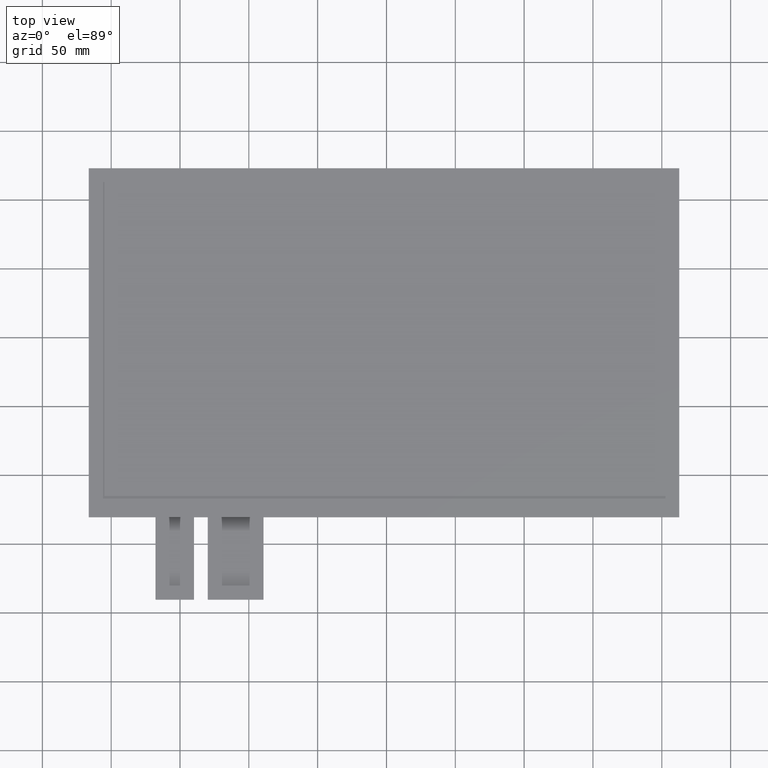
[diagram: clean part render]
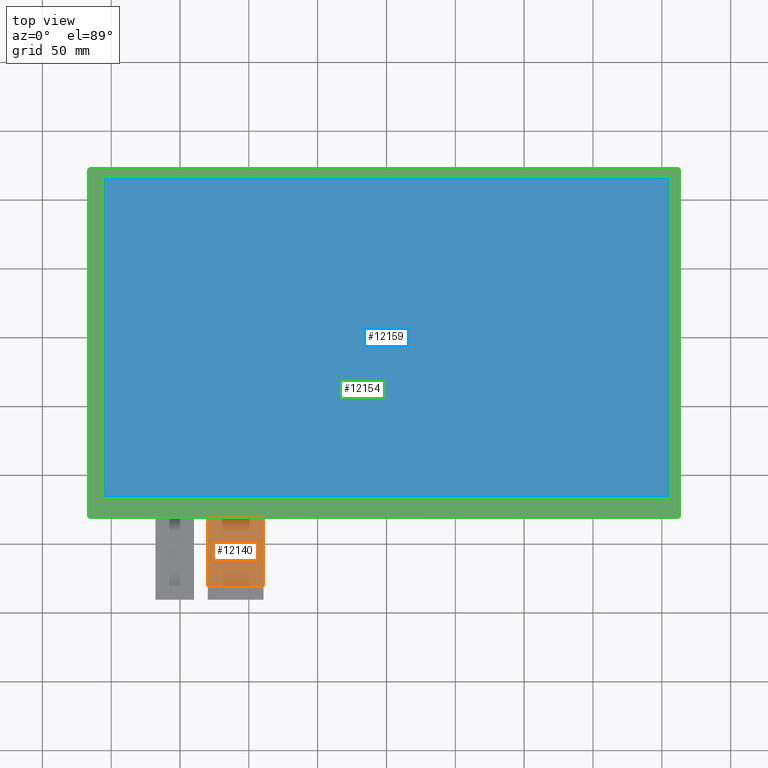
[diagram: same view with three faces highlighted in distinct colors, each labeled with its STEP entity id]
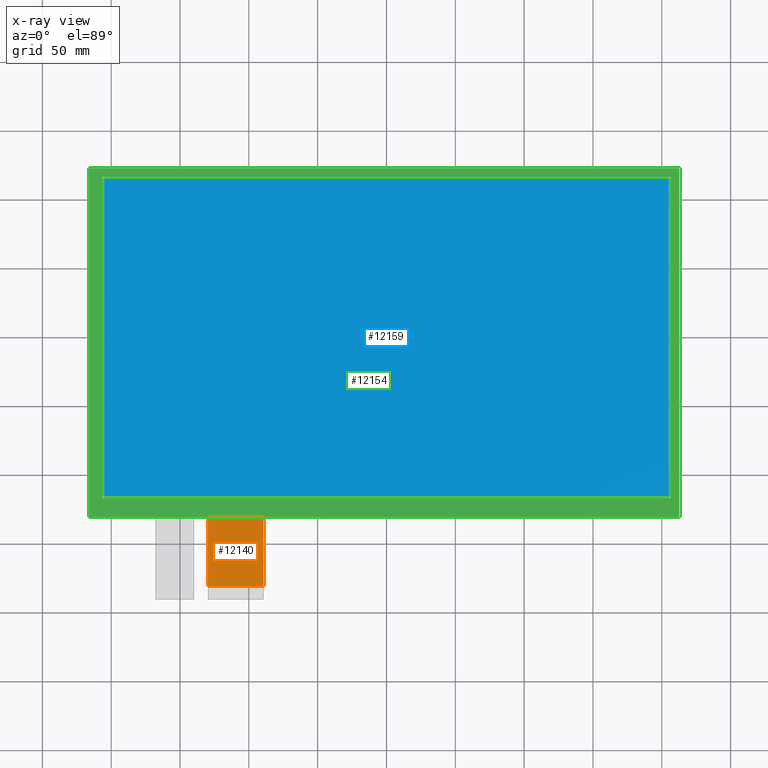
[diagram: x-ray of the same camera — body ghosted, the three highlighted faces saturated]
A machine part, top view with three faces highlighted in distinct colors.
The next image is the same camera in x-ray (body ghosted, the three faces saturated) — at least one of them is partly hidden behind the body in this view.
Their STEP definitions:

[orange] entity #12140 — the highlighted planar face has unit normal (0, 0, 1).
#682=PLANE('',#12746);
#1260=FACE_OUTER_BOUND('',#1838,.T.);
#1838=EDGE_LOOP('',(#11475,#11476,#11477,#11478));
#3514=LINE('',#18972,#5222);
#3517=LINE('',#18978,#5225);
#3527=LINE('',#18997,#5235);
#3528=LINE('',#18999,#5236);
#5222=VECTOR('',#15540,10.);
#5225=VECTOR('',#15545,10.);
#5235=VECTOR('',#15563,10.);
#5236=VECTOR('',#15566,10.);
#6396=VERTEX_POINT('',#18969);
#6397=VERTEX_POINT('',#18971);
#6399=VERTEX_POINT('',#18977);
#6404=VERTEX_POINT('',#18995);
#8090=EDGE_CURVE('',#6397,#6396,#3514,.T.);
#8093=EDGE_CURVE('',#6396,#6399,#3517,.T.);
#8103=EDGE_CURVE('',#6399,#6404,#3527,.T.);
#8104=EDGE_CURVE('',#6397,#6404,#3528,.T.);
#11475=ORIENTED_EDGE('',*,*,#8093,.T.);
#11476=ORIENTED_EDGE('',*,*,#8103,.T.);
#11477=ORIENTED_EDGE('',*,*,#8104,.F.);
#11478=ORIENTED_EDGE('',*,*,#8090,.T.);
#12140=ADVANCED_FACE('',(#1260),#682,.T.);
#12746=AXIS2_PLACEMENT_3D('',#18998,#15564,#15565);
#15540=DIRECTION('',(2.96059473233375E-16,-1.,0.));
#15545=DIRECTION('',(1.,0.,0.));
#15563=DIRECTION('',(8.88178419700127E-16,1.,0.));
#15564=DIRECTION('center_axis',(0.,0.,1.));
#15565=DIRECTION('ref_axis',(1.,0.,0.));
#15566=DIRECTION('',(1.,1.24220758000017E-16,0.));
#18969=CARTESIAN_POINT('',(-129.8,-180.5,-1.1));
#18971=CARTESIAN_POINT('',(-129.8,-130.5,-1.1));
#18972=CARTESIAN_POINT('',(-129.8,-130.5,-1.1));
#18977=CARTESIAN_POINT('',(-89.3,-180.5,-1.1));
#18978=CARTESIAN_POINT('',(-99.425,-180.5,-1.1));
#18995=CARTESIAN_POINT('',(-89.2999999999999,-130.5,-1.1));
#18997=CARTESIAN_POINT('',(-89.3,-190.5,-1.1));
#18998=CARTESIAN_POINT('Origin',(-109.55,-160.5,-1.1));
#18999=CARTESIAN_POINT('',(51.575,-130.5,-1.1));

[blue] entity #12159 — the highlighted planar face has unit normal (0, 0, 1).
#701=PLANE('',#12765);
#1279=FACE_OUTER_BOUND('',#1861,.T.);
#1861=EDGE_LOOP('',(#11571,#11572,#11573,#11574));
#3535=LINE('',#19015,#5243);
#3539=LINE('',#19023,#5247);
#3542=LINE('',#19029,#5250);
#3545=LINE('',#19034,#5253);
#5243=VECTOR('',#15583,10.);
#5247=VECTOR('',#15589,10.);
#5250=VECTOR('',#15594,10.);
#5253=VECTOR('',#15599,10.);
#6407=VERTEX_POINT('',#19013);
#6408=VERTEX_POINT('',#19014);
#6411=VERTEX_POINT('',#19022);
#6413=VERTEX_POINT('',#19028);
#8111=EDGE_CURVE('',#6407,#6408,#3535,.T.);
#8115=EDGE_CURVE('',#6411,#6407,#3539,.T.);
#8118=EDGE_CURVE('',#6413,#6411,#3542,.T.);
#8121=EDGE_CURVE('',#6408,#6413,#3545,.T.);
#11571=ORIENTED_EDGE('',*,*,#8111,.T.);
#11572=ORIENTED_EDGE('',*,*,#8121,.T.);
#11573=ORIENTED_EDGE('',*,*,#8118,.T.);
#11574=ORIENTED_EDGE('',*,*,#8115,.T.);
#12159=ADVANCED_FACE('',(#1279),#701,.T.);
#12765=AXIS2_PLACEMENT_3D('',#19086,#15645,#15646);
#15583=DIRECTION('',(1.,0.,0.));
#15589=DIRECTION('',(0.,-1.,0.));
#15594=DIRECTION('',(-1.,0.,0.));
#15599=DIRECTION('',(0.,1.,0.));
#15645=DIRECTION('center_axis',(0.,0.,1.));
#15646=DIRECTION('ref_axis',(1.,0.,0.));
#19013=CARTESIAN_POINT('',(-204.9,-115.2,0.));
#19014=CARTESIAN_POINT('',(204.9,-115.2,0.));
#19015=CARTESIAN_POINT('',(-103.35,-115.2,0.));
#19022=CARTESIAN_POINT('',(-204.9,115.2,0.));
#19023=CARTESIAN_POINT('',(-204.9,55.725,0.));
#19028=CARTESIAN_POINT('',(204.9,115.2,0.));
#19029=CARTESIAN_POINT('',(101.55,115.2,0.));
#19034=CARTESIAN_POINT('',(204.9,-59.475,0.));
#19086=CARTESIAN_POINT('Origin',(-1.80000000000001,-3.75000000000002,0.));

[green] entity #12154 — the highlighted planar face has unit normal (0, 0, 1).
#126=FACE_BOUND('',#1854,.T.);
#696=PLANE('',#12760);
#1274=FACE_OUTER_BOUND('',#1853,.T.);
#1853=EDGE_LOOP('',(#11539,#11540,#11541,#11542));
#1854=EDGE_LOOP('',(#11543,#11544,#11545,#11546));
#3547=LINE('',#19039,#5255);
#3551=LINE('',#19047,#5259);
#3554=LINE('',#19053,#5262);
#3557=LINE('',#19058,#5265);
#3559=LINE('',#19064,#5267);
#3560=LINE('',#19066,#5268);
#3561=LINE('',#19068,#5269);
#3562=LINE('',#19069,#5270);
#5255=VECTOR('',#15603,10.);
#5259=VECTOR('',#15609,10.);
#5262=VECTOR('',#15614,10.);
#5265=VECTOR('',#15619,10.);
#5267=VECTOR('',#15625,10.);
#5268=VECTOR('',#15626,10.);
#5269=VECTOR('',#15627,10.);
#5270=VECTOR('',#15628,10.);
#6415=VERTEX_POINT('',#19037);
#6416=VERTEX_POINT('',#19038);
#6419=VERTEX_POINT('',#19046);
#6421=VERTEX_POINT('',#19052);
#6423=VERTEX_POINT('',#19062);
#6424=VERTEX_POINT('',#19063);
#6425=VERTEX_POINT('',#19065);
#6426=VERTEX_POINT('',#19067);
#8123=EDGE_CURVE('',#6415,#6416,#3547,.T.);
#8127=EDGE_CURVE('',#6419,#6415,#3551,.T.);
#8130=EDGE_CURVE('',#6421,#6419,#3554,.T.);
#8133=EDGE_CURVE('',#6416,#6421,#3557,.T.);
#8135=EDGE_CURVE('',#6423,#6424,#3559,.T.);
#8136=EDGE_CURVE('',#6424,#6425,#3560,.T.);
#8137=EDGE_CURVE('',#6425,#6426,#3561,.T.);
#8138=EDGE_CURVE('',#6426,#6423,#3562,.T.);
#11539=ORIENTED_EDGE('',*,*,#8135,.T.);
#11540=ORIENTED_EDGE('',*,*,#8136,.T.);
#11541=ORIENTED_EDGE('',*,*,#8137,.T.);
#11542=ORIENTED_EDGE('',*,*,#8138,.T.);
#11543=ORIENTED_EDGE('',*,*,#8123,.T.);
#11544=ORIENTED_EDGE('',*,*,#8133,.T.);
#11545=ORIENTED_EDGE('',*,*,#8130,.T.);
#11546=ORIENTED_EDGE('',*,*,#8127,.T.);
#12154=ADVANCED_FACE('',(#1274,#126),#696,.T.);
#12760=AXIS2_PLACEMENT_3D('',#19061,#15623,#15624);
#15603=DIRECTION('',(-3.03650741777821E-16,1.,0.));
#15609=DIRECTION('',(-1.,-8.59388891824021E-17,0.));
#15614=DIRECTION('',(-1.5182537088891E-16,-1.,0.));
#15619=DIRECTION('',(1.,0.,0.));
#15623=DIRECTION('center_axis',(0.,0.,1.));
#15624=DIRECTION('ref_axis',(1.,0.,0.));
#15625=DIRECTION('',(-1.,0.,0.));
#15626=DIRECTION('',(2.80292992410296E-16,-1.,0.));
#15627=DIRECTION('',(1.,1.24220758000017E-16,0.));
#15628=DIRECTION('',(1.40146496205148E-16,1.,0.));
#19037=CARTESIAN_POINT('',(-206.7,-117.,0.));
#19038=CARTESIAN_POINT('',(-206.7,117.,0.));
#19039=CARTESIAN_POINT('',(-206.7,-60.3750000000001,0.));
#19046=CARTESIAN_POINT('',(206.7,-117.,0.));
#19047=CARTESIAN_POINT('',(102.45,-117.,0.));
#19052=CARTESIAN_POINT('',(206.7,117.,0.));
#19053=CARTESIAN_POINT('',(206.7,56.625,0.));
#19058=CARTESIAN_POINT('',(-104.25,117.,0.));
#19061=CARTESIAN_POINT('Origin',(-1.80000000000001,-3.75000000000002,0.));
#19062=CARTESIAN_POINT('',(212.7,123.,0.));
#19063=CARTESIAN_POINT('',(-216.3,123.,0.));
#19064=CARTESIAN_POINT('',(212.7,123.,0.));
#19065=CARTESIAN_POINT('',(-216.3,-130.5,0.));
#19066=CARTESIAN_POINT('',(-216.3,123.,0.));
#19067=CARTESIAN_POINT('',(212.7,-130.5,0.));
#19068=CARTESIAN_POINT('',(-216.3,-130.5,0.));
#19069=CARTESIAN_POINT('',(212.7,-130.5,0.));